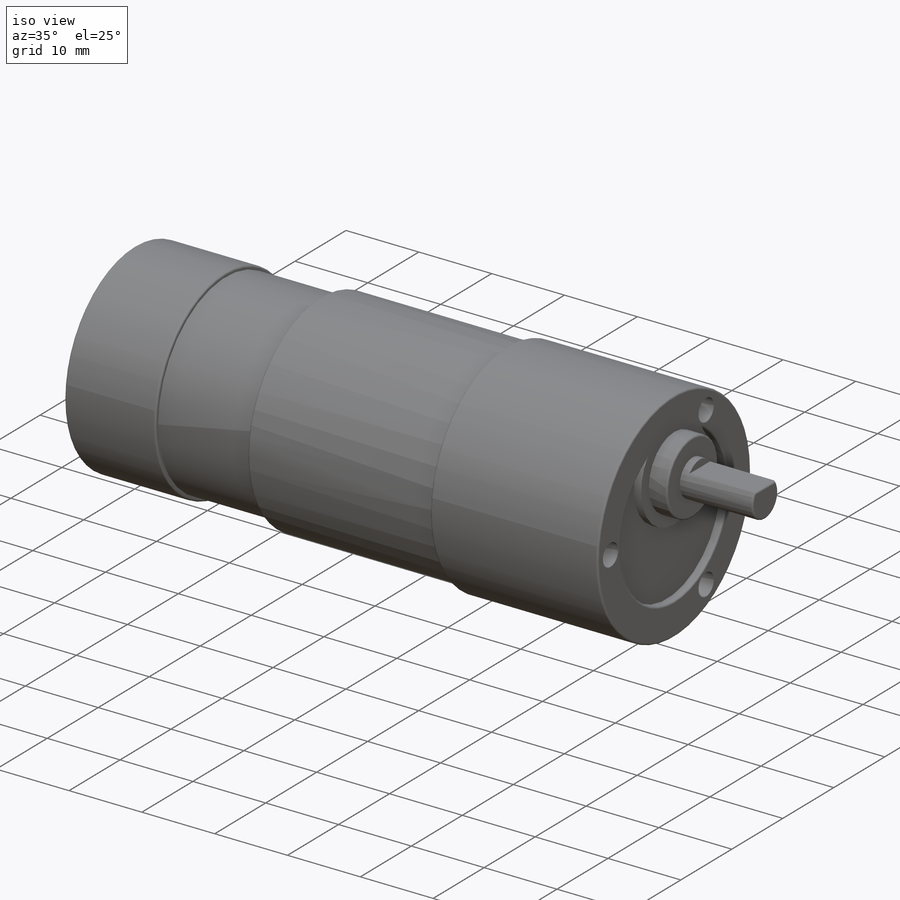
[diagram: iso view]
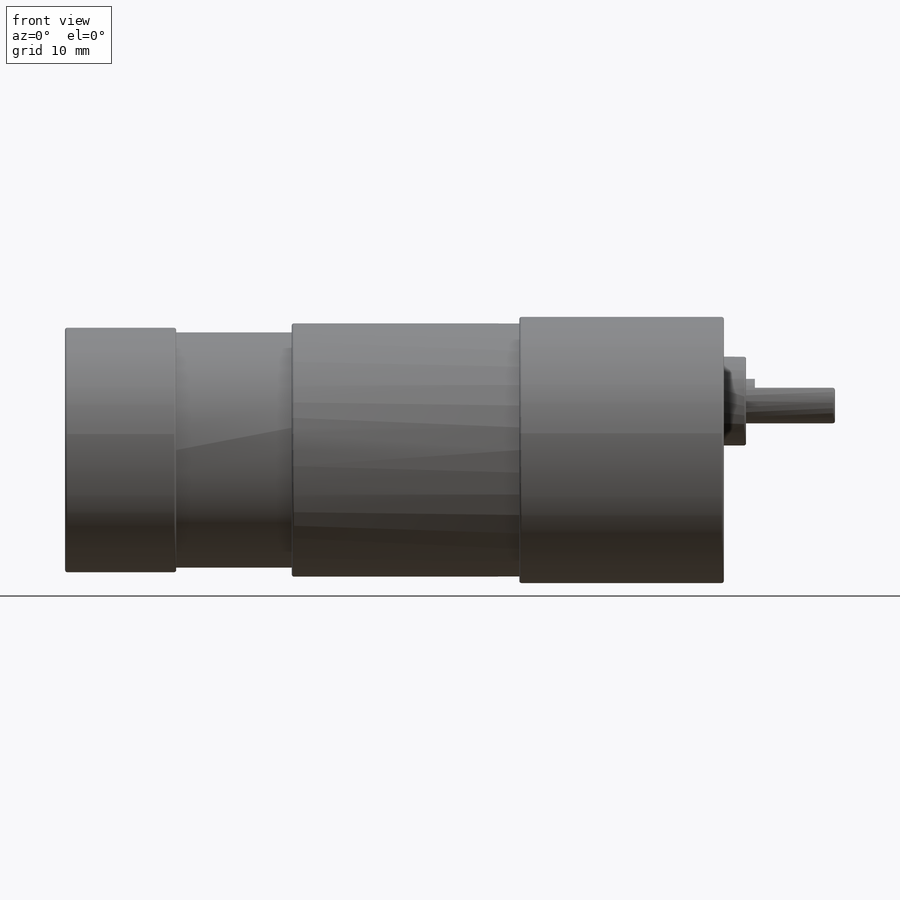
[diagram: front view]
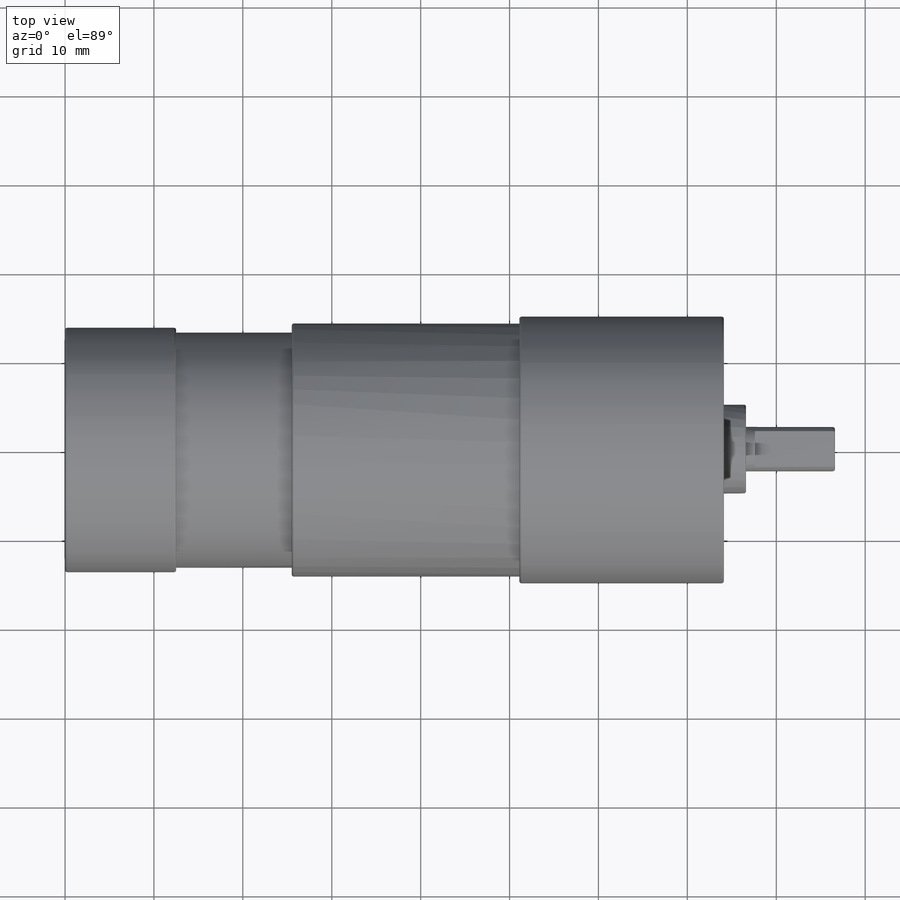
[diagram: top view]
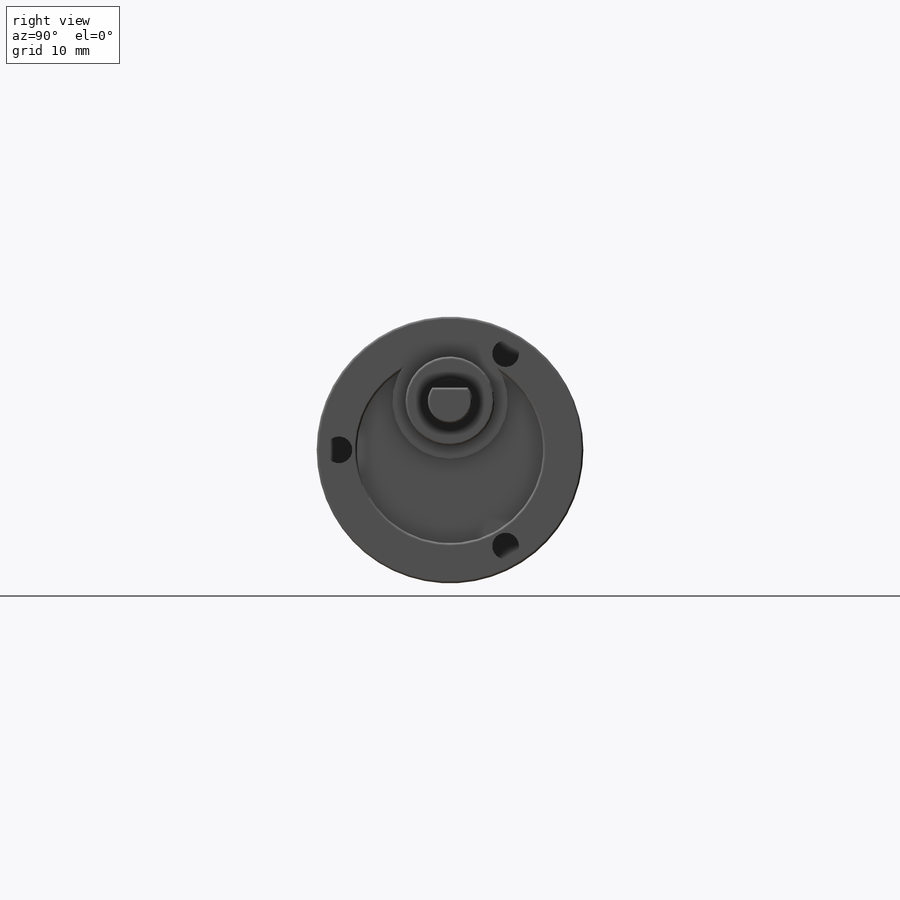
[diagram: right view]
SOLIDWORKS PART (.sldprt)
format: sldprt  version: not decoded by parser v0  size: 384,512 bytes
history: native  units: mm
features: sketch x7, cut_extrude x4, extrude x2, material x1, cut_revolve x1, fillet x1 (+13 scaffold rows collapsed)
feature tree (29):
  scaffold x13  (default folders/planes/origin — collapsed)
  material  "1060 Alloy"
  sketch  "Sketch1"  dims[D1=30.0mm]
  extrude  "Boss-Extrude1"  Depth=76.6mm
  sketch  "Sketch2"  dims[D1=5.0mm D2=5.5mm]
  extrude  "Boss-Extrude2"  Depth=10mm
  sketch  "Sketch4"  dims[D1=1.5mm]
  cut_extrude  "Cut-Extrude1"  Depth=9mm
  sketch  "Sketch5"  dims[c1.D1=12.5mm c1.D2=13.0mm c1.D3=1.0mm c2.D1=0.75mm c2.D2=1.25mm c2.D3=0.5mm c2.D4=12.5mm c2.D5=13.0mm c2.D6=25.6mm]
  cut_revolve  "Cut-Revolve1"  Angle=360deg
  sketch  "Sketch6"  dims[D1=10.0mm D2=30.0mm]
  cut_extrude  "Cut-Extrude2"  Depth=2.5mm
  sketch  "Sketch7"  dims[D1=1.5mm]
  cut_extrude  "Cut-Extrude3"  Depth=1mm
  sketch  "Sketch8"  dims[c1.D1=25.0mm c1.D3=3.0mm c1.D2=15.0mm c2.D2=60.0deg c2.D4=3.0]
  cut_extrude  "Cut-Extrude4"  Depth=4mm
  fillet  "Fillet1"  Radius=0.25mm
decode coverage: 15 of 15 modeling features carry decoded parameters
note: suppression state not decoded; provenance and decode notes live in map.json
